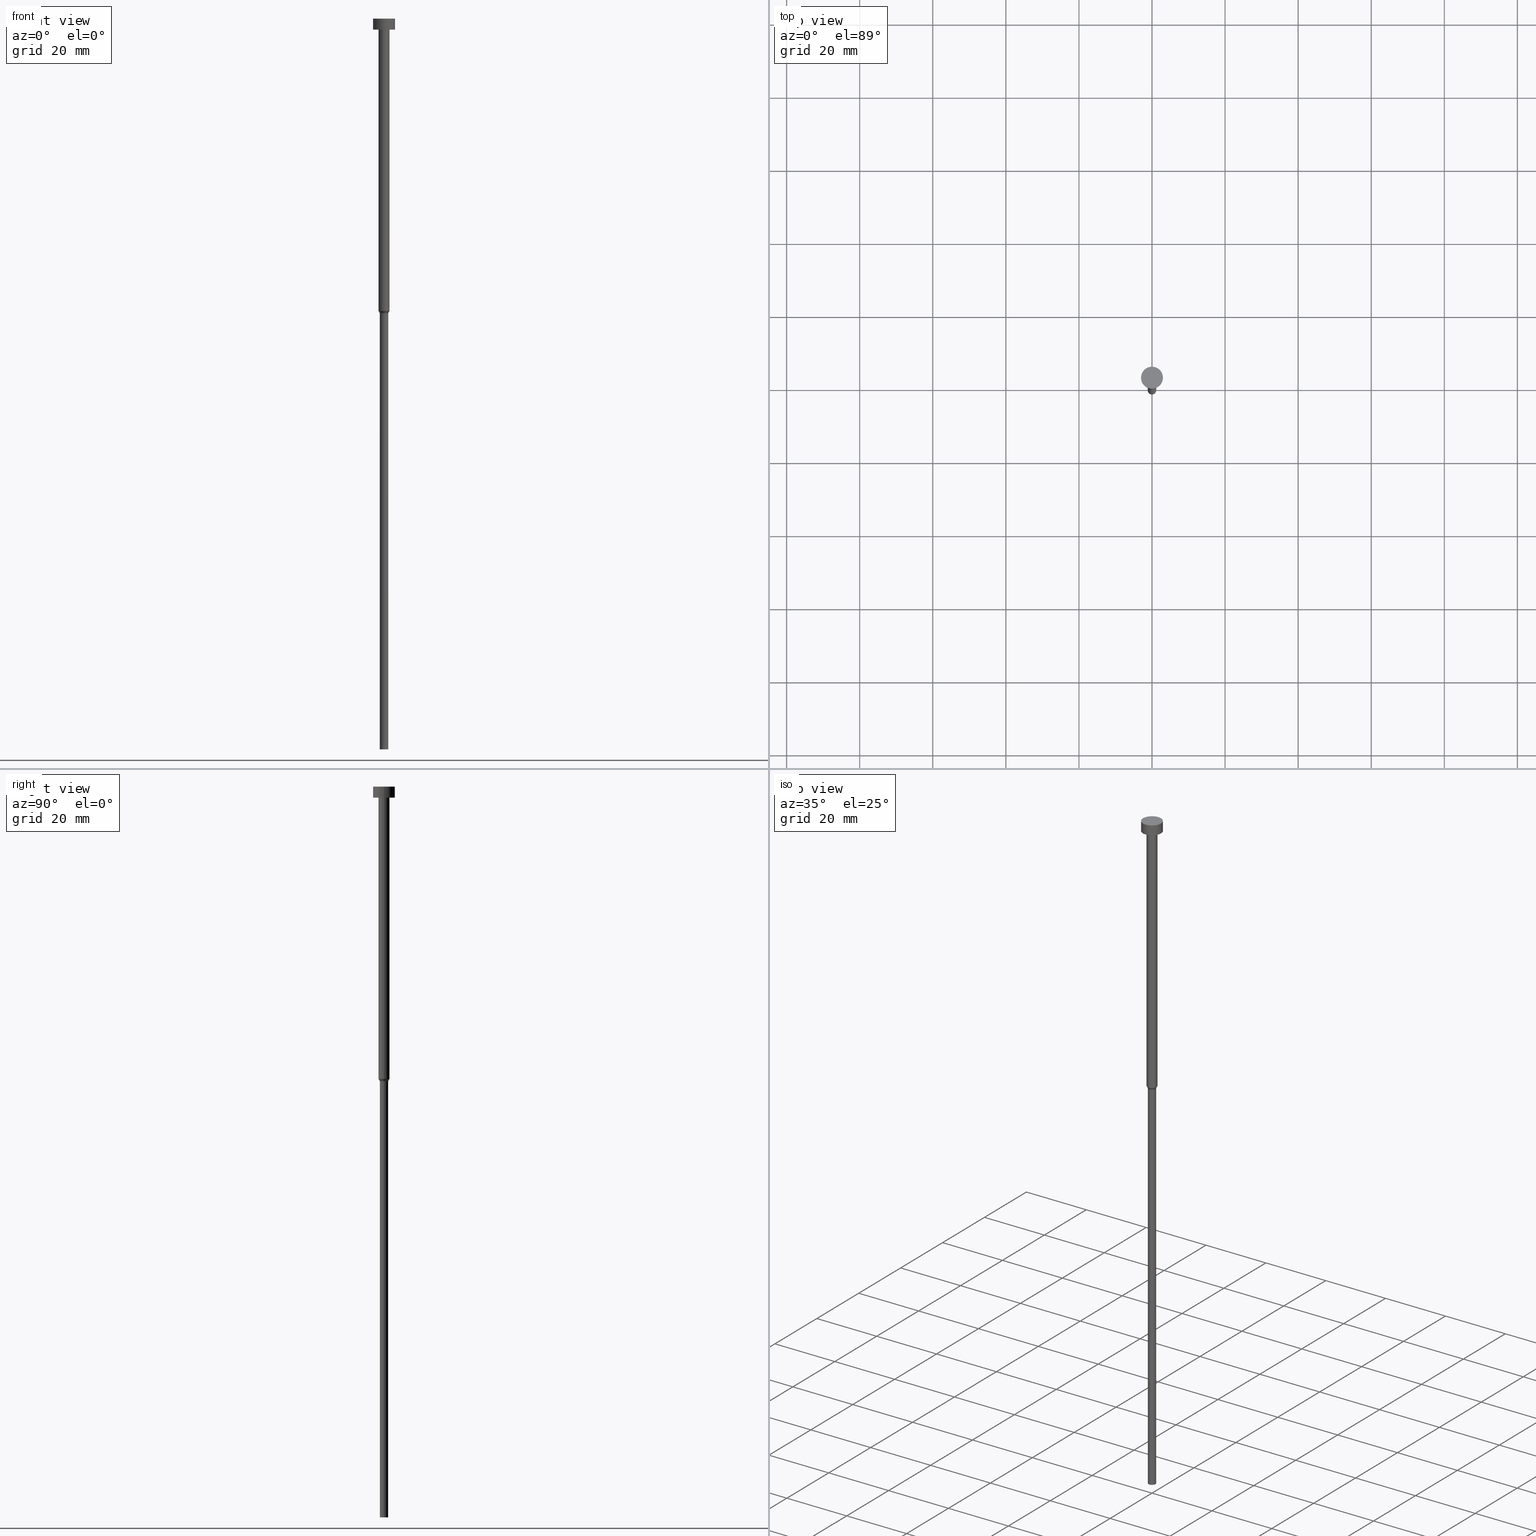
[diagram: canonical four-view strip — front | top / right | iso, engineering-drawing reading convention]
A machine part, canonical four-view strip (front | top / right | iso — engineering-drawing reading convention). The complete STEP part file that produces these views, byte-faithful:
ISO-10303-21;
HEADER;
FILE_DESCRIPTION (( 'STEP AP203' ),
    '1' );
FILE_NAME ('f71e.STEP',
    '2023-02-13T09:02:56',
    ( '' ),
    ( '' ),
    'SwSTEP 2.0',
    'SolidWorks 2019',
    '' );
FILE_SCHEMA (( 'CONFIG_CONTROL_DESIGN' ));
ENDSEC;

DATA;
#1 =( NAMED_UNIT ( * ) PLANE_ANGLE_UNIT ( ) SI_UNIT ( $, .RADIAN. ) );
#2 = CARTESIAN_POINT ( 'NONE',  ( -1.500000000000000000, 1.836970198721029934E-16, -3.000000000000000888 ) ) ;
#3 = VECTOR ( 'NONE', #60, 1000.000000000000000 ) ;
#4 = FACE_OUTER_BOUND ( 'NONE', #214, .T. ) ;
#5 = MANIFOLD_SOLID_BREP ( 'Rotovat1', #199 ) ;
#6 = CC_DESIGN_PERSON_AND_ORGANIZATION_ASSIGNMENT ( #280, #42, ( #260 ) ) ;
#7 = VECTOR ( 'NONE', #52, 1000.000000000000000 ) ;
#8 = CC_DESIGN_APPROVAL ( #203, ( #295 ) ) ;
#9 = ADVANCED_FACE ( 'NONE', ( #4 ), #141, .T. ) ;
#10 = DIRECTION ( 'NONE',  ( 1.000000000000000000, 0.000000000000000000, 0.000000000000000000 ) ) ;
#11 = AXIS2_PLACEMENT_3D ( 'NONE', #172, #87, #166 ) ;
#12 = APPLICATION_CONTEXT ( 'configuration controlled 3d designs of mechanical parts and assemblies' ) ;
#13 = CARTESIAN_POINT ( 'NONE',  ( 0.000000000000000000, 0.000000000000000000, -3.673940397442059868E-16 ) ) ;
#14 = COORDINATED_UNIVERSAL_TIME_OFFSET ( 1, 0, .AHEAD. ) ;
#15 = VECTOR ( 'NONE', #16, 1000.000000000000000 ) ;
#16 = DIRECTION ( 'NONE',  ( -0.000000000000000000, -0.000000000000000000, 1.000000000000000000 ) ) ;
#17 = DIRECTION ( 'NONE',  ( 1.000000000000000000, 0.000000000000000000, 0.000000000000000000 ) ) ;
#18 = CALENDAR_DATE ( 2023, 13, 2 ) ;
#19 = ORIENTED_EDGE ( 'NONE', *, *, #331, .T. ) ;
#20 = APPROVAL_PERSON_ORGANIZATION ( #148, #134, #339 ) ;
#21 = EDGE_CURVE ( 'NONE', #212, #133, #223, .T. ) ;
#22 = ORIENTED_EDGE ( 'NONE', *, *, #154, .F. ) ;
#23 = ADVANCED_BREP_SHAPE_REPRESENTATION ( 'f71e', ( #5, #259 ), #150 ) ;
#24 = DIRECTION ( 'NONE',  ( -0.000000000000000000, -0.000000000000000000, 1.000000000000000000 ) ) ;
#25 = VERTEX_POINT ( 'NONE', #196 ) ;
#26 = ORIENTED_EDGE ( 'NONE', *, *, #299, .F. ) ;
#27 = AXIS2_PLACEMENT_3D ( 'NONE', #346, #258, #289 ) ;
#28 = LOCAL_TIME ( 10, 2, 56.00000000000000000, #99 ) ;
#29 = CARTESIAN_POINT ( 'NONE',  ( -1.500000000000000000, 1.836970198721029934E-16, 0.000000000000000000 ) ) ;
#30 = ORIENTED_EDGE ( 'NONE', *, *, #355, .F. ) ;
#31 = DIRECTION ( 'NONE',  ( 1.000000000000000000, 0.000000000000000000, 0.000000000000000000 ) ) ;
#32 = AXIS2_PLACEMENT_3D ( 'NONE', #206, #24, #178 ) ;
#33 = CARTESIAN_POINT ( 'NONE',  ( 0.000000000000000000, 0.000000000000000000, 0.000000000000000000 ) ) ;
#34 = DIRECTION ( 'NONE',  ( 1.000000000000000000, 0.000000000000000000, 0.000000000000000000 ) ) ;
#35 = CARTESIAN_POINT ( 'NONE',  ( 0.000000000000000000, 0.000000000000000000, -3.000000000000000888 ) ) ;
#36 = CALENDAR_DATE ( 2023, 13, 2 ) ;
#37 = CARTESIAN_POINT ( 'NONE',  ( 0.000000000000000000, 0.000000000000000000, -200.0000000000000000 ) ) ;
#38 = CIRCLE ( 'NONE', #120, 1.149999999999999911 ) ;
#39 = LINE ( 'NONE', #311, #88 ) ;
#40 = CC_DESIGN_PERSON_AND_ORGANIZATION_ASSIGNMENT ( #222, #302, ( #84 ) ) ;
#41 = AXIS2_PLACEMENT_3D ( 'NONE', #256, #152, #17 ) ;
#42 = PERSON_AND_ORGANIZATION_ROLE ( 'creator' ) ;
#43 = DIRECTION ( 'NONE',  ( 0.000000000000000000, 0.000000000000000000, -1.000000000000000000 ) ) ;
#44 = ADVANCED_FACE ( 'NONE', ( #245 ), #96, .T. ) ;
#45 = CYLINDRICAL_SURFACE ( 'NONE', #41, 1.500000000000000000 ) ;
#46 = APPLICATION_PROTOCOL_DEFINITION ( 'international standard', 'config_control_design', 1994, #12 ) ;
#47 = DESIGN_CONTEXT ( 'detailed design', #333, 'design' ) ;
#48 = AXIS2_PLACEMENT_3D ( 'NONE', #129, #237, #53 ) ;
#49 = VERTEX_POINT ( 'NONE', #2 ) ;
#50 = DATE_TIME_ROLE ( 'creation_date' ) ;
#51 = CC_DESIGN_SECURITY_CLASSIFICATION ( #84, ( #295 ) ) ;
#52 = DIRECTION ( 'NONE',  ( -0.000000000000000000, -0.000000000000000000, 1.000000000000000000 ) ) ;
#53 = DIRECTION ( 'NONE',  ( 1.000000000000000000, 0.000000000000000000, 0.000000000000000000 ) ) ;
#54 = CARTESIAN_POINT ( 'NONE',  ( -1.149999999999999911, 1.408343819019456028E-16, -80.60621778264911086 ) ) ;
#55 = ORIENTED_EDGE ( 'NONE', *, *, #180, .F. ) ;
#56 = FACE_OUTER_BOUND ( 'NONE', #231, .T. ) ;
#57 = LINE ( 'NONE', #29, #3 ) ;
#58 = VERTEX_POINT ( 'NONE', #248 ) ;
#59 = ADVANCED_FACE ( 'NONE', ( #200 ), #89, .T. ) ;
#60 = DIRECTION ( 'NONE',  ( -0.000000000000000000, -0.000000000000000000, 1.000000000000000000 ) ) ;
#61 = ORIENTED_EDGE ( 'NONE', *, *, #216, .T. ) ;
#62 = FACE_BOUND ( 'NONE', #189, .T. ) ;
#63 = ADVANCED_FACE ( 'NONE', ( #170 ), #303, .T. ) ;
#64 = CYLINDRICAL_SURFACE ( 'NONE', #240, 1.149999999999999911 ) ;
#65 = DIRECTION ( 'NONE',  ( 1.000000000000000000, 0.000000000000000000, 0.000000000000000000 ) ) ;
#66 = AXIS2_PLACEMENT_3D ( 'NONE', #330, #113, #31 ) ;
#67 = DIRECTION ( 'NONE',  ( 1.000000000000000000, 0.000000000000000000, 0.000000000000000000 ) ) ;
#68 = CIRCLE ( 'NONE', #192, 1.149999999999999911 ) ;
#69 = EDGE_CURVE ( 'NONE', #49, #58, #317, .T. ) ;
#70 = AXIS2_PLACEMENT_3D ( 'NONE', #257, #160, #220 ) ;
#71 = DIRECTION ( 'NONE',  ( -0.000000000000000000, -0.000000000000000000, 1.000000000000000000 ) ) ;
#72 = CC_DESIGN_APPROVAL ( #235, ( #84 ) ) ;
#73 = EDGE_CURVE ( 'NONE', #242, #345, #142, .T. ) ;
#74 = FACE_OUTER_BOUND ( 'NONE', #107, .T. ) ;
#75 = DIRECTION ( 'NONE',  ( -0.000000000000000000, -0.000000000000000000, 1.000000000000000000 ) ) ;
#76 = DIRECTION ( 'NONE',  ( -0.000000000000000000, -0.000000000000000000, 1.000000000000000000 ) ) ;
#77 = ORIENTED_EDGE ( 'NONE', *, *, #73, .F. ) ;
#78 = DIRECTION ( 'NONE',  ( 1.000000000000000000, 0.000000000000000000, 0.000000000000000000 ) ) ;
#79 = AXIS2_PLACEMENT_3D ( 'NONE', #131, #76, #239 ) ;
#80 = DIRECTION ( 'NONE',  ( -0.000000000000000000, -0.000000000000000000, 1.000000000000000000 ) ) ;
#81 = ORIENTED_EDGE ( 'NONE', *, *, #95, .F. ) ;
#82 = ORIENTED_EDGE ( 'NONE', *, *, #249, .T. ) ;
#83 = ORIENTED_EDGE ( 'NONE', *, *, #233, .F. ) ;
#84 = SECURITY_CLASSIFICATION ( '', '', #116 ) ;
#85 = APPROVAL_STATUS ( 'not_yet_approved' ) ;
#86 = CARTESIAN_POINT ( 'NONE',  ( 3.000000000000000000, 0.000000000000000000, -3.673940397442059868E-16 ) ) ;
#87 = DIRECTION ( 'NONE',  ( -0.000000000000000000, -0.000000000000000000, 1.000000000000000000 ) ) ;
#88 = VECTOR ( 'NONE', #146, 1000.000000000000000 ) ;
#89 = CYLINDRICAL_SURFACE ( 'NONE', #11, 1.500000000000000000 ) ;
#90 = ORIENTED_EDGE ( 'NONE', *, *, #69, .F. ) ;
#91 = COORDINATED_UNIVERSAL_TIME_OFFSET ( 1, 0, .AHEAD. ) ;
#92 = CARTESIAN_POINT ( 'NONE',  ( -1.500000000000000000, 1.836970198721029934E-16, -80.00000000000000000 ) ) ;
#93 = DIRECTION ( 'NONE',  ( -0.000000000000000000, -0.000000000000000000, 1.000000000000000000 ) ) ;
#94 = LOCAL_TIME ( 10, 2, 56.00000000000000000, #14 ) ;
#95 = EDGE_CURVE ( 'NONE', #268, #212, #68, .T. ) ;
#96 = PLANE ( 'NONE',  #229 ) ;
#97 = CARTESIAN_POINT ( 'NONE',  ( -1.500000000000000000, 1.836970198721029934E-16, -80.00000000000000000 ) ) ;
#98 = CARTESIAN_POINT ( 'NONE',  ( 0.000000000000000000, 0.000000000000000000, -3.000000000000000888 ) ) ;
#99 = COORDINATED_UNIVERSAL_TIME_OFFSET ( 1, 0, .AHEAD. ) ;
#100 =( NAMED_UNIT ( * ) SI_UNIT ( $, .STERADIAN. ) SOLID_ANGLE_UNIT ( ) );
#101 = CONICAL_SURFACE ( 'NONE', #173, 1.500000000000000000, 0.5235987755983008141 ) ;
#102 = DIRECTION ( 'NONE',  ( -0.000000000000000000, -0.000000000000000000, 1.000000000000000000 ) ) ;
#103 = MECHANICAL_CONTEXT ( 'NONE', #12, 'mechanical' ) ;
#104 = FACE_OUTER_BOUND ( 'NONE', #263, .T. ) ;
#105 = ADVANCED_FACE ( 'NONE', ( #62, #314 ), #278, .T. ) ;
#106 = EDGE_LOOP ( 'NONE', ( #55, #81 ) ) ;
#107 = EDGE_LOOP ( 'NONE', ( #352, #61, #221, #238 ) ) ;
#108 = ORIENTED_EDGE ( 'NONE', *, *, #21, .T. ) ;
#109 = CARTESIAN_POINT ( 'NONE',  ( 0.000000000000000000, 0.000000000000000000, -200.0000000000000000 ) ) ;
#110 = VERTEX_POINT ( 'NONE', #340 ) ;
#111 = CARTESIAN_POINT ( 'NONE',  ( 1.149999999999999911, 0.000000000000000000, 0.000000000000000000 ) ) ;
#112 = PERSON_AND_ORGANIZATION ( #226, #350 ) ;
#113 = DIRECTION ( 'NONE',  ( -0.000000000000000000, -0.000000000000000000, 1.000000000000000000 ) ) ;
#114 = CONICAL_SURFACE ( 'NONE', #332, 1.500000000000000000, 0.5235987755983008141 ) ;
#115 = ADVANCED_FACE ( 'NONE', ( #74 ), #45, .T. ) ;
#116 = SECURITY_CLASSIFICATION_LEVEL ( 'unclassified' ) ;
#117 = LINE ( 'NONE', #313, #15 ) ;
#118 = EDGE_CURVE ( 'NONE', #268, #184, #230, .T. ) ;
#119 = CALENDAR_DATE ( 2023, 13, 2 ) ;
#120 = AXIS2_PLACEMENT_3D ( 'NONE', #318, #75, #354 ) ;
#121 = PRODUCT_RELATED_PRODUCT_CATEGORY ( 'detail', '', ( #151 ) ) ;
#122 = DIRECTION ( 'NONE',  ( 1.000000000000000000, 0.000000000000000000, 0.000000000000000000 ) ) ;
#123 = CARTESIAN_POINT ( 'NONE',  ( 0.000000000000000000, 0.000000000000000000, 0.000000000000000000 ) ) ;
#124 = CIRCLE ( 'NONE', #32, 1.500000000000000000 ) ;
#125 = LOCAL_TIME ( 10, 2, 56.00000000000000000, #266 ) ;
#126 = ORIENTED_EDGE ( 'NONE', *, *, #310, .T. ) ;
#127 = ORIENTED_EDGE ( 'NONE', *, *, #279, .F. ) ;
#128 = CIRCLE ( 'NONE', #197, 1.500000000000000000 ) ;
#129 = CARTESIAN_POINT ( 'NONE',  ( 0.000000000000000000, 0.000000000000000000, 0.000000000000000000 ) ) ;
#130 = ORIENTED_EDGE ( 'NONE', *, *, #164, .T. ) ;
#131 = CARTESIAN_POINT ( 'NONE',  ( 0.000000000000000000, 0.000000000000000000, -80.60621778264911086 ) ) ;
#132 = CIRCLE ( 'NONE', #270, 1.500000000000000000 ) ;
#133 = VERTEX_POINT ( 'NONE', #276 ) ;
#134 = APPROVAL ( #252, 'NEUR�EN�' ) ;
#135 = CYLINDRICAL_SURFACE ( 'NONE', #48, 1.149999999999999911 ) ;
#136 = LINE ( 'NONE', #92, #211 ) ;
#137 = EDGE_LOOP ( 'NONE', ( #293, #234, #130, #90 ) ) ;
#138 = EDGE_CURVE ( 'NONE', #133, #290, #39, .T. ) ;
#139 = APPROVAL_DATE_TIME ( #185, #235 ) ;
#140 = DIRECTION ( 'NONE',  ( 1.000000000000000000, 0.000000000000000000, 0.000000000000000000 ) ) ;
#141 = CYLINDRICAL_SURFACE ( 'NONE', #288, 3.000000000000000000 ) ;
#142 = LINE ( 'NONE', #167, #300 ) ;
#143 = APPROVAL_DATE_TIME ( #147, #203 ) ;
#144 = CC_DESIGN_DATE_AND_TIME_ASSIGNMENT ( #218, #50, ( #260 ) ) ;
#145 = APPROVAL_PERSON_ORGANIZATION ( #190, #235, #243 ) ;
#146 = DIRECTION ( 'NONE',  ( 0.5000000000000016653, 0.000000000000000000, 0.8660254037844377084 ) ) ;
#147 = DATE_AND_TIME ( #36, #244 ) ;
#148 = PERSON_AND_ORGANIZATION ( #226, #350 ) ;
#149 = CALENDAR_DATE ( 2023, 13, 2 ) ;
#150 =( GEOMETRIC_REPRESENTATION_CONTEXT ( 3 ) GLOBAL_UNCERTAINTY_ASSIGNED_CONTEXT ( ( #349 ) ) GLOBAL_UNIT_ASSIGNED_CONTEXT ( ( #253, #1, #100 ) ) REPRESENTATION_CONTEXT ( 'NONE', 'WORKASPACE' ) );
#151 = PRODUCT ( 'f71e', 'f71e', '', ( #103 ) ) ;
#152 = DIRECTION ( 'NONE',  ( -0.000000000000000000, -0.000000000000000000, 1.000000000000000000 ) ) ;
#153 = VECTOR ( 'NONE', #71, 1000.000000000000000 ) ;
#154 = EDGE_CURVE ( 'NONE', #290, #159, #128, .T. ) ;
#155 = PERSON_AND_ORGANIZATION ( #226, #350 ) ;
#156 = ORIENTED_EDGE ( 'NONE', *, *, #177, .T. ) ;
#157 = ORIENTED_EDGE ( 'NONE', *, *, #138, .F. ) ;
#158 = APPROVAL_ROLE ( '' ) ;
#159 = VERTEX_POINT ( 'NONE', #97 ) ;
#160 = DIRECTION ( 'NONE',  ( -0.000000000000000000, -0.000000000000000000, 1.000000000000000000 ) ) ;
#161 = APPROVAL_PERSON_ORGANIZATION ( #210, #203, #158 ) ;
#162 = ORIENTED_EDGE ( 'NONE', *, *, #21, .F. ) ;
#163 = ORIENTED_EDGE ( 'NONE', *, *, #95, .T. ) ;
#164 = EDGE_CURVE ( 'NONE', #290, #58, #117, .T. ) ;
#165 = APPROVAL_STATUS ( 'not_yet_approved' ) ;
#166 = DIRECTION ( 'NONE',  ( 1.000000000000000000, 0.000000000000000000, 0.000000000000000000 ) ) ;
#167 = CARTESIAN_POINT ( 'NONE',  ( 3.000000000000000000, 0.000000000000000000, 0.000000000000000000 ) ) ;
#168 = CIRCLE ( 'NONE', #315, 3.000000000000000000 ) ;
#169 = DIRECTION ( 'NONE',  ( -0.000000000000000000, -0.000000000000000000, 1.000000000000000000 ) ) ;
#170 = FACE_OUTER_BOUND ( 'NONE', #186, .T. ) ;
#171 = AXIS2_PLACEMENT_3D ( 'NONE', #35, #309, #65 ) ;
#172 = CARTESIAN_POINT ( 'NONE',  ( 0.000000000000000000, 0.000000000000000000, 0.000000000000000000 ) ) ;
#173 = AXIS2_PLACEMENT_3D ( 'NONE', #351, #102, #316 ) ;
#174 = CC_DESIGN_PERSON_AND_ORGANIZATION_ASSIGNMENT ( #155, #284, ( #151 ) ) ;
#175 = DIRECTION ( 'NONE',  ( -0.000000000000000000, -0.000000000000000000, 1.000000000000000000 ) ) ;
#176 = CC_DESIGN_APPROVAL ( #134, ( #260 ) ) ;
#177 = EDGE_CURVE ( 'NONE', #110, #242, #275, .T. ) ;
#178 = DIRECTION ( 'NONE',  ( 1.000000000000000000, 0.000000000000000000, 0.000000000000000000 ) ) ;
#179 = ORIENTED_EDGE ( 'NONE', *, *, #224, .F. ) ;
#180 = EDGE_CURVE ( 'NONE', #212, #268, #188, .T. ) ;
#181 = LINE ( 'NONE', #286, #7 ) ;
#182 = ORIENTED_EDGE ( 'NONE', *, *, #118, .F. ) ;
#183 = DIRECTION ( 'NONE',  ( 1.000000000000000000, 0.000000000000000000, 0.000000000000000000 ) ) ;
#184 = VERTEX_POINT ( 'NONE', #54 ) ;
#185 = DATE_AND_TIME ( #18, #125 ) ;
#186 = EDGE_LOOP ( 'NONE', ( #319, #156, #353, #127 ) ) ;
#187 = FACE_OUTER_BOUND ( 'NONE', #209, .T. ) ;
#188 = CIRCLE ( 'NONE', #282, 1.149999999999999911 ) ;
#189 = EDGE_LOOP ( 'NONE', ( #82, #264 ) ) ;
#190 = PERSON_AND_ORGANIZATION ( #226, #350 ) ;
#191 = DIRECTION ( 'NONE',  ( -0.000000000000000000, -0.000000000000000000, 1.000000000000000000 ) ) ;
#192 = AXIS2_PLACEMENT_3D ( 'NONE', #37, #191, #301 ) ;
#193 = PERSON_AND_ORGANIZATION ( #226, #350 ) ;
#194 = ORIENTED_EDGE ( 'NONE', *, *, #283, .T. ) ;
#195 = COORDINATED_UNIVERSAL_TIME_OFFSET ( 1, 0, .AHEAD. ) ;
#196 = CARTESIAN_POINT ( 'NONE',  ( -3.000000000000000000, 3.673940397442059868E-16, -3.673940397442059868E-16 ) ) ;
#197 = AXIS2_PLACEMENT_3D ( 'NONE', #250, #175, #10 ) ;
#198 = DIRECTION ( 'NONE',  ( -0.000000000000000000, -0.000000000000000000, 1.000000000000000000 ) ) ;
#199 = CLOSED_SHELL ( 'NONE', ( #9, #115, #323, #307, #274, #343, #265, #59, #105, #63, #44 ) ) ;
#200 = FACE_OUTER_BOUND ( 'NONE', #137, .T. ) ;
#201 = DATE_AND_TIME ( #149, #202 ) ;
#202 = LOCAL_TIME ( 10, 2, 56.00000000000000000, #195 ) ;
#203 = APPROVAL ( #85, 'NEUR�EN�' ) ;
#204 = CARTESIAN_POINT ( 'NONE',  ( 0.000000000000000000, 0.000000000000000000, -80.00000000000000000 ) ) ;
#205 = CARTESIAN_POINT ( 'NONE',  ( -1.149999999999999911, 1.408343819019456028E-16, 0.000000000000000000 ) ) ;
#206 = CARTESIAN_POINT ( 'NONE',  ( 0.000000000000000000, 0.000000000000000000, -80.00000000000000000 ) ) ;
#207 = ORIENTED_EDGE ( 'NONE', *, *, #310, .F. ) ;
#208 = CARTESIAN_POINT ( 'NONE',  ( -1.149999999999999911, 1.408343819019456028E-16, -200.0000000000000000 ) ) ;
#209 = EDGE_LOOP ( 'NONE', ( #182, #163, #108, #207 ) ) ;
#210 = PERSON_AND_ORGANIZATION ( #226, #350 ) ;
#211 = VECTOR ( 'NONE', #306, 1000.000000000000000 ) ;
#212 = VERTEX_POINT ( 'NONE', #292 ) ;
#213 = FACE_OUTER_BOUND ( 'NONE', #106, .T. ) ;
#214 = EDGE_LOOP ( 'NONE', ( #298, #194, #83, #77 ) ) ;
#215 = CALENDAR_DATE ( 2023, 13, 2 ) ;
#216 = EDGE_CURVE ( 'NONE', #159, #49, #57, .T. ) ;
#217 = EDGE_LOOP ( 'NONE', ( #179, #126, #241, #26 ) ) ;
#218 = DATE_AND_TIME ( #215, #28 ) ;
#219 = CC_DESIGN_PERSON_AND_ORGANIZATION_ASSIGNMENT ( #193, #247, ( #295 ) ) ;
#220 = DIRECTION ( 'NONE',  ( 1.000000000000000000, 0.000000000000000000, 0.000000000000000000 ) ) ;
#221 = ORIENTED_EDGE ( 'NONE', *, *, #249, .F. ) ;
#222 = PERSON_AND_ORGANIZATION ( #226, #350 ) ;
#223 = LINE ( 'NONE', #111, #269 ) ;
#224 = EDGE_CURVE ( 'NONE', #184, #159, #136, .T. ) ;
#225 = CARTESIAN_POINT ( 'NONE',  ( 0.000000000000000000, -3.000000000000000000, -3.000000000000000888 ) ) ;
#226 = PERSON ( 'NEUR�EN�', 'NEUR�EN�', 'NEUR�EN�', ('NEUR�EN�'), ('NEUR�EN�'), ('NEUR�EN�') ) ;
#227 = CIRCLE ( 'NONE', #79, 1.149999999999999911 ) ;
#228 = DIRECTION ( 'NONE',  ( 0.000000000000000000, 0.000000000000000000, 1.000000000000000000 ) ) ;
#229 = AXIS2_PLACEMENT_3D ( 'NONE', #334, #305, #67 ) ;
#230 = LINE ( 'NONE', #205, #153 ) ;
#231 = EDGE_LOOP ( 'NONE', ( #236, #327, #287, #162 ) ) ;
#232 = DIRECTION ( 'NONE',  ( -0.000000000000000000, -0.000000000000000000, 1.000000000000000000 ) ) ;
#233 = EDGE_CURVE ( 'NONE', #345, #25, #281, .T. ) ;
#234 = ORIENTED_EDGE ( 'NONE', *, *, #299, .T. ) ;
#235 = APPROVAL ( #165, 'NEUR�EN�' ) ;
#236 = ORIENTED_EDGE ( 'NONE', *, *, #180, .T. ) ;
#237 = DIRECTION ( 'NONE',  ( -0.000000000000000000, -0.000000000000000000, 1.000000000000000000 ) ) ;
#238 = ORIENTED_EDGE ( 'NONE', *, *, #164, .F. ) ;
#239 = DIRECTION ( 'NONE',  ( 1.000000000000000000, 0.000000000000000000, 0.000000000000000000 ) ) ;
#240 = AXIS2_PLACEMENT_3D ( 'NONE', #33, #296, #34 ) ;
#241 = ORIENTED_EDGE ( 'NONE', *, *, #138, .T. ) ;
#242 = VERTEX_POINT ( 'NONE', #304 ) ;
#243 = APPROVAL_ROLE ( '' ) ;
#244 = LOCAL_TIME ( 10, 2, 56.00000000000000000, #91 ) ;
#245 = FACE_OUTER_BOUND ( 'NONE', #324, .T. ) ;
#246 = CC_DESIGN_DATE_AND_TIME_ASSIGNMENT ( #201, #341, ( #84 ) ) ;
#247 = PERSON_AND_ORGANIZATION_ROLE ( 'design_supplier' ) ;
#248 = CARTESIAN_POINT ( 'NONE',  ( 1.500000000000000000, 0.000000000000000000, -3.000000000000000888 ) ) ;
#249 = EDGE_CURVE ( 'NONE', #58, #49, #132, .T. ) ;
#250 = CARTESIAN_POINT ( 'NONE',  ( 0.000000000000000000, 0.000000000000000000, -80.00000000000000000 ) ) ;
#251 = PERSON_AND_ORGANIZATION_ROLE ( 'creator' ) ;
#252 = APPROVAL_STATUS ( 'not_yet_approved' ) ;
#253 =( LENGTH_UNIT ( ) NAMED_UNIT ( * ) SI_UNIT ( .MILLI., .METRE. ) );
#254 = APPROVAL_DATE_TIME ( #312, #134 ) ;
#255 = AXIS2_PLACEMENT_3D ( 'NONE', #225, #43, #338 ) ;
#256 = CARTESIAN_POINT ( 'NONE',  ( 0.000000000000000000, 0.000000000000000000, 0.000000000000000000 ) ) ;
#257 = CARTESIAN_POINT ( 'NONE',  ( 0.000000000000000000, 0.000000000000000000, -3.000000000000000888 ) ) ;
#258 = DIRECTION ( 'NONE',  ( 0.000000000000000000, 0.000000000000000000, -1.000000000000000000 ) ) ;
#259 = AXIS2_PLACEMENT_3D ( 'NONE', #123, #228, #122 ) ;
#260 = PRODUCT_DEFINITION ( 'NEZN�M�', '', #295, #47 ) ;
#261 = PLANE ( 'NONE',  #27 ) ;
#262 = CARTESIAN_POINT ( 'NONE',  ( 1.500000000000000000, 0.000000000000000000, -80.00000000000000000 ) ) ;
#263 = EDGE_LOOP ( 'NONE', ( #19, #321, #22, #157 ) ) ;
#264 = ORIENTED_EDGE ( 'NONE', *, *, #69, .T. ) ;
#265 = ADVANCED_FACE ( 'NONE', ( #328 ), #114, .T. ) ;
#266 = COORDINATED_UNIVERSAL_TIME_OFFSET ( 1, 0, .AHEAD. ) ;
#267 = CARTESIAN_POINT ( 'NONE',  ( 0.000000000000000000, 0.000000000000000000, -3.673940397442059868E-16 ) ) ;
#268 = VERTEX_POINT ( 'NONE', #208 ) ;
#269 = VECTOR ( 'NONE', #271, 1000.000000000000000 ) ;
#270 = AXIS2_PLACEMENT_3D ( 'NONE', #98, #169, #308 ) ;
#271 = DIRECTION ( 'NONE',  ( -0.000000000000000000, -0.000000000000000000, 1.000000000000000000 ) ) ;
#272 = DIRECTION ( 'NONE',  ( -0.000000000000000000, -0.000000000000000000, 1.000000000000000000 ) ) ;
#273 = DIRECTION ( 'NONE',  ( 1.000000000000000000, 0.000000000000000000, 0.000000000000000000 ) ) ;
#274 = ADVANCED_FACE ( 'NONE', ( #213 ), #261, .T. ) ;
#275 = CIRCLE ( 'NONE', #70, 3.000000000000000000 ) ;
#276 = CARTESIAN_POINT ( 'NONE',  ( 1.149999999999999911, 0.000000000000000000, -80.60621778264911086 ) ) ;
#277 = CC_DESIGN_PERSON_AND_ORGANIZATION_ASSIGNMENT ( #112, #251, ( #295 ) ) ;
#278 = PLANE ( 'NONE',  #255 ) ;
#279 = EDGE_CURVE ( 'NONE', #25, #345, #168, .T. ) ;
#280 = PERSON_AND_ORGANIZATION ( #226, #350 ) ;
#281 = CIRCLE ( 'NONE', #294, 3.000000000000000000 ) ;
#282 = AXIS2_PLACEMENT_3D ( 'NONE', #109, #80, #183 ) ;
#283 = EDGE_CURVE ( 'NONE', #110, #25, #181, .T. ) ;
#284 = PERSON_AND_ORGANIZATION_ROLE ( 'design_owner' ) ;
#285 = ORIENTED_EDGE ( 'NONE', *, *, #233, .T. ) ;
#286 = CARTESIAN_POINT ( 'NONE',  ( -3.000000000000000000, 3.673940397442059868E-16, 0.000000000000000000 ) ) ;
#287 = ORIENTED_EDGE ( 'NONE', *, *, #331, .F. ) ;
#288 = AXIS2_PLACEMENT_3D ( 'NONE', #336, #93, #140 ) ;
#289 = DIRECTION ( 'NONE',  ( -1.000000000000000000, 0.000000000000000000, -0.000000000000000000 ) ) ;
#290 = VERTEX_POINT ( 'NONE', #262 ) ;
#291 = DIRECTION ( 'NONE',  ( 1.000000000000000000, 0.000000000000000000, 0.000000000000000000 ) ) ;
#292 = CARTESIAN_POINT ( 'NONE',  ( 1.149999999999999911, 0.000000000000000000, -200.0000000000000000 ) ) ;
#293 = ORIENTED_EDGE ( 'NONE', *, *, #216, .F. ) ;
#294 = AXIS2_PLACEMENT_3D ( 'NONE', #13, #335, #337 ) ;
#295 = PRODUCT_DEFINITION_FORMATION_WITH_SPECIFIED_SOURCE ( 'LIBOVOLN�', '', #151, .NOT_KNOWN. ) ;
#296 = DIRECTION ( 'NONE',  ( -0.000000000000000000, -0.000000000000000000, 1.000000000000000000 ) ) ;
#297 = SHAPE_DEFINITION_REPRESENTATION ( #342, #23 ) ;
#298 = ORIENTED_EDGE ( 'NONE', *, *, #355, .T. ) ;
#299 = EDGE_CURVE ( 'NONE', #159, #290, #124, .T. ) ;
#300 = VECTOR ( 'NONE', #198, 1000.000000000000000 ) ;
#301 = DIRECTION ( 'NONE',  ( 1.000000000000000000, 0.000000000000000000, 0.000000000000000000 ) ) ;
#302 = PERSON_AND_ORGANIZATION_ROLE ( 'classification_officer' ) ;
#303 = CYLINDRICAL_SURFACE ( 'NONE', #325, 3.000000000000000000 ) ;
#304 = CARTESIAN_POINT ( 'NONE',  ( 3.000000000000000000, 0.000000000000000000, -3.000000000000000888 ) ) ;
#305 = DIRECTION ( 'NONE',  ( 0.000000000000000000, -0.000000000000000000, 1.000000000000000000 ) ) ;
#306 = DIRECTION ( 'NONE',  ( -0.5000000000000016653, 6.123233995736786990E-17, 0.8660254037844377084 ) ) ;
#307 = ADVANCED_FACE ( 'NONE', ( #56 ), #135, .T. ) ;
#308 = DIRECTION ( 'NONE',  ( 1.000000000000000000, 0.000000000000000000, 0.000000000000000000 ) ) ;
#309 = DIRECTION ( 'NONE',  ( -0.000000000000000000, -0.000000000000000000, 1.000000000000000000 ) ) ;
#310 = EDGE_CURVE ( 'NONE', #184, #133, #227, .T. ) ;
#311 = CARTESIAN_POINT ( 'NONE',  ( 1.500000000000000000, 0.000000000000000000, -80.00000000000000000 ) ) ;
#312 = DATE_AND_TIME ( #119, #94 ) ;
#313 = CARTESIAN_POINT ( 'NONE',  ( 1.500000000000000000, 0.000000000000000000, 0.000000000000000000 ) ) ;
#314 = FACE_OUTER_BOUND ( 'NONE', #348, .T. ) ;
#315 = AXIS2_PLACEMENT_3D ( 'NONE', #267, #232, #78 ) ;
#316 = DIRECTION ( 'NONE',  ( 1.000000000000000000, 0.000000000000000000, 0.000000000000000000 ) ) ;
#317 = CIRCLE ( 'NONE', #171, 1.500000000000000000 ) ;
#318 = CARTESIAN_POINT ( 'NONE',  ( 0.000000000000000000, 0.000000000000000000, -80.60621778264911086 ) ) ;
#319 = ORIENTED_EDGE ( 'NONE', *, *, #283, .F. ) ;
#320 = APPLICATION_PROTOCOL_DEFINITION ( 'international standard', 'config_control_design', 1994, #333 ) ;
#321 = ORIENTED_EDGE ( 'NONE', *, *, #224, .T. ) ;
#322 = CIRCLE ( 'NONE', #66, 3.000000000000000000 ) ;
#323 = ADVANCED_FACE ( 'NONE', ( #104 ), #101, .T. ) ;
#324 = EDGE_LOOP ( 'NONE', ( #285, #347 ) ) ;
#325 = AXIS2_PLACEMENT_3D ( 'NONE', #329, #272, #273 ) ;
#326 = ORIENTED_EDGE ( 'NONE', *, *, #177, .F. ) ;
#327 = ORIENTED_EDGE ( 'NONE', *, *, #118, .T. ) ;
#328 = FACE_OUTER_BOUND ( 'NONE', #217, .T. ) ;
#329 = CARTESIAN_POINT ( 'NONE',  ( 0.000000000000000000, 0.000000000000000000, 0.000000000000000000 ) ) ;
#330 = CARTESIAN_POINT ( 'NONE',  ( 0.000000000000000000, 0.000000000000000000, -3.000000000000000888 ) ) ;
#331 = EDGE_CURVE ( 'NONE', #133, #184, #38, .T. ) ;
#332 = AXIS2_PLACEMENT_3D ( 'NONE', #204, #344, #291 ) ;
#333 = APPLICATION_CONTEXT ( 'configuration controlled 3d designs of mechanical parts and assemblies' ) ;
#334 = CARTESIAN_POINT ( 'NONE',  ( 0.000000000000000000, 0.000000000000000000, -1.836970198721029934E-16 ) ) ;
#335 = DIRECTION ( 'NONE',  ( -0.000000000000000000, -0.000000000000000000, 1.000000000000000000 ) ) ;
#336 = CARTESIAN_POINT ( 'NONE',  ( 0.000000000000000000, 0.000000000000000000, 0.000000000000000000 ) ) ;
#337 = DIRECTION ( 'NONE',  ( 1.000000000000000000, 0.000000000000000000, 0.000000000000000000 ) ) ;
#338 = DIRECTION ( 'NONE',  ( -1.000000000000000000, 0.000000000000000000, -0.000000000000000000 ) ) ;
#339 = APPROVAL_ROLE ( '' ) ;
#340 = CARTESIAN_POINT ( 'NONE',  ( -3.000000000000000000, 3.673940397442059868E-16, -3.000000000000000888 ) ) ;
#341 = DATE_TIME_ROLE ( 'classification_date' ) ;
#342 = PRODUCT_DEFINITION_SHAPE ( 'NONE', 'NONE',  #260 ) ;
#343 = ADVANCED_FACE ( 'NONE', ( #187 ), #64, .T. ) ;
#344 = DIRECTION ( 'NONE',  ( -0.000000000000000000, -0.000000000000000000, 1.000000000000000000 ) ) ;
#345 = VERTEX_POINT ( 'NONE', #86 ) ;
#346 = CARTESIAN_POINT ( 'NONE',  ( 0.000000000000000000, 0.000000000000000000, -200.0000000000000000 ) ) ;
#347 = ORIENTED_EDGE ( 'NONE', *, *, #279, .T. ) ;
#348 = EDGE_LOOP ( 'NONE', ( #30, #326 ) ) ;
#349 = UNCERTAINTY_MEASURE_WITH_UNIT (LENGTH_MEASURE( 1.000000000000000082E-05 ), #253, 'distance_accuracy_value', 'NONE');
#350 = ORGANIZATION ( 'NEUR�EN�', 'NEUR�EN�', '' ) ;
#351 = CARTESIAN_POINT ( 'NONE',  ( 0.000000000000000000, 0.000000000000000000, -80.00000000000000000 ) ) ;
#352 = ORIENTED_EDGE ( 'NONE', *, *, #154, .T. ) ;
#353 = ORIENTED_EDGE ( 'NONE', *, *, #73, .T. ) ;
#354 = DIRECTION ( 'NONE',  ( 1.000000000000000000, 0.000000000000000000, 0.000000000000000000 ) ) ;
#355 = EDGE_CURVE ( 'NONE', #242, #110, #322, .T. ) ;
ENDSEC;
END-ISO-10303-21;
